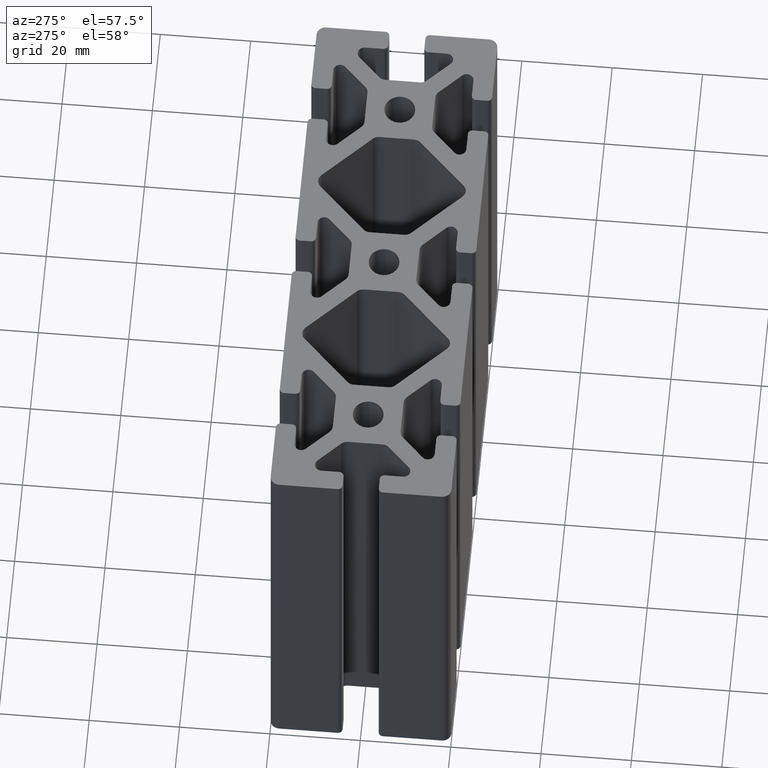
[diagram: clean part render]
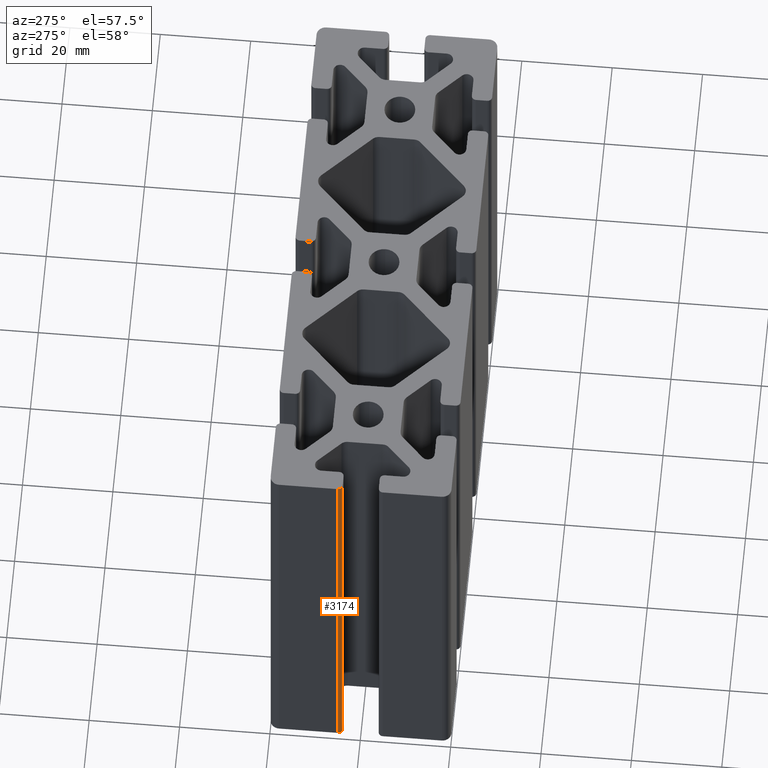
[diagram: same view with one face highlighted and labeled with its STEP entity id]
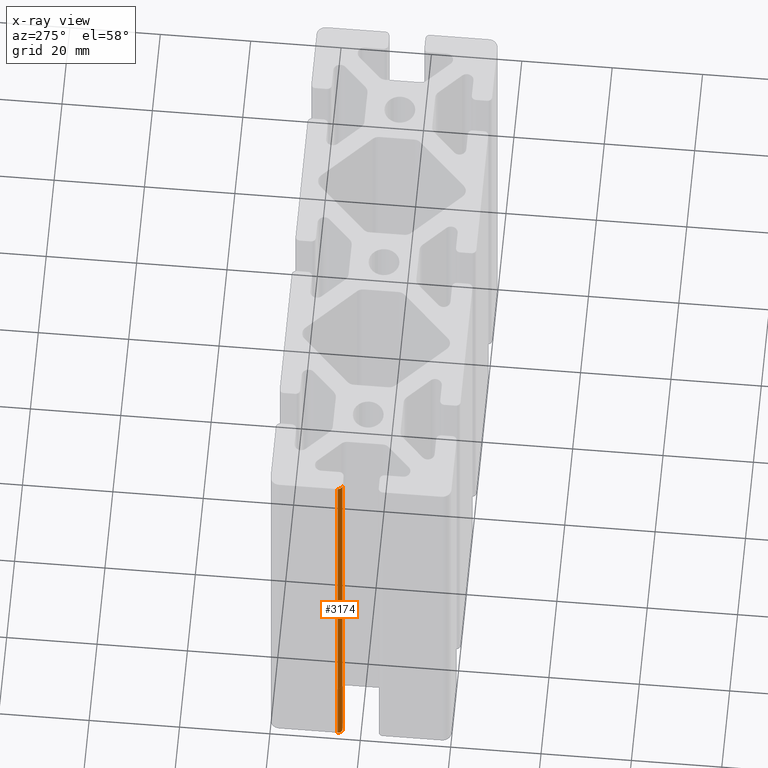
[diagram: x-ray of the same camera — body ghosted, the highlighted face saturated]
A machine part, auxiliary view. The second image highlights one B-rep face of the part: STEP entity #3174.
The next image is the same camera in x-ray: the body ghosted, the highlighted face saturated — about 0% of this face is hidden behind the body in this view.
In plain terms, the highlighted cylindrical surface (edge-blend (fillet) strip) has radius 1 mm, axis along (0, 0, 1).
Its self-contained STEP definition (entity closure, byte-faithful):
#158=FACE_OUTER_BOUND('',#323,.T.);
#323=EDGE_LOOP('',(#2263,#2264,#2265,#2266));
#550=LINE('',#4911,#870);
#551=LINE('',#4914,#871);
#870=VECTOR('',#3923,100.);
#871=VECTOR('',#3926,100.);
#1143=CIRCLE('',#3392,1.);
#1144=CIRCLE('',#3393,1.);
#1361=VERTEX_POINT('',#4907);
#1362=VERTEX_POINT('',#4908);
#1363=VERTEX_POINT('',#4910);
#1364=VERTEX_POINT('',#4912);
#1732=EDGE_CURVE('',#1361,#1362,#1143,.T.);
#1733=EDGE_CURVE('',#1361,#1363,#550,.T.);
#1734=EDGE_CURVE('',#1364,#1363,#1144,.T.);
#1735=EDGE_CURVE('',#1364,#1362,#551,.T.);
#2263=ORIENTED_EDGE('',*,*,#1732,.F.);
#2264=ORIENTED_EDGE('',*,*,#1733,.T.);
#2265=ORIENTED_EDGE('',*,*,#1734,.F.);
#2266=ORIENTED_EDGE('',*,*,#1735,.T.);
#3068=CYLINDRICAL_SURFACE('',#3391,1.);
#3174=ADVANCED_FACE('',(#158),#3068,.T.);
#3391=AXIS2_PLACEMENT_3D('',#4906,#3919,#3920);
#3392=AXIS2_PLACEMENT_3D('',#4909,#3921,#3922);
#3393=AXIS2_PLACEMENT_3D('',#4913,#3924,#3925);
#3919=DIRECTION('center_axis',(0.,0.,1.));
#3920=DIRECTION('ref_axis',(1.,7.77156117237585E-15,0.));
#3921=DIRECTION('center_axis',(0.,0.,1.));
#3922=DIRECTION('ref_axis',(1.,7.77156117237585E-15,0.));
#3923=DIRECTION('',(0.,0.,-1.));
#3924=DIRECTION('center_axis',(0.,0.,-1.));
#3925=DIRECTION('ref_axis',(1.,7.77156117237585E-15,0.));
#3926=DIRECTION('',(0.,0.,1.));
#4906=CARTESIAN_POINT('Origin',(-59.,5.00000000000001,0.));
#4907=CARTESIAN_POINT('',(-60.,5.,100.));
#4908=CARTESIAN_POINT('',(-59.,4.00000000000001,100.));
#4909=CARTESIAN_POINT('Origin',(-59.,5.00000000000001,100.));
#4910=CARTESIAN_POINT('',(-60.,5.,0.));
#4911=CARTESIAN_POINT('',(-60.,5.00000000000001,0.));
#4912=CARTESIAN_POINT('',(-59.,4.00000000000001,0.));
#4913=CARTESIAN_POINT('Origin',(-59.,5.00000000000001,0.));
#4914=CARTESIAN_POINT('',(-59.,4.00000000000001,0.));